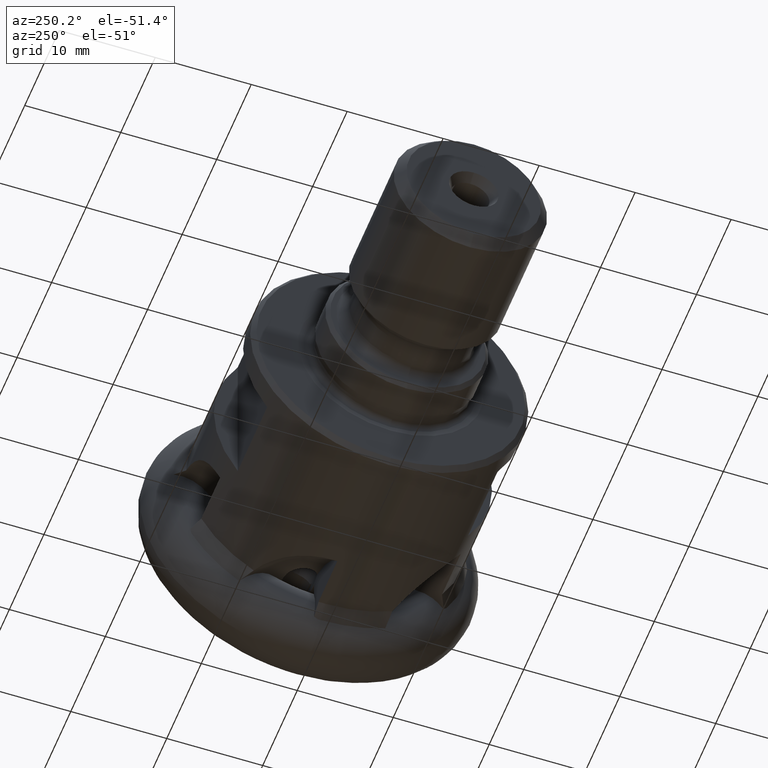
[diagram: clean part render]
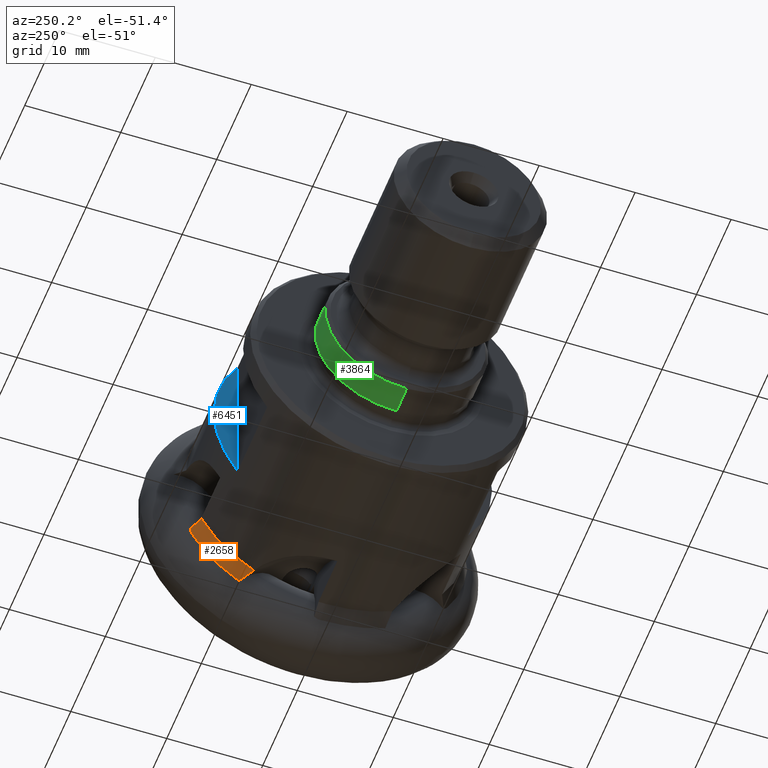
[diagram: same view with three faces highlighted in distinct colors, each labeled with its STEP entity id]
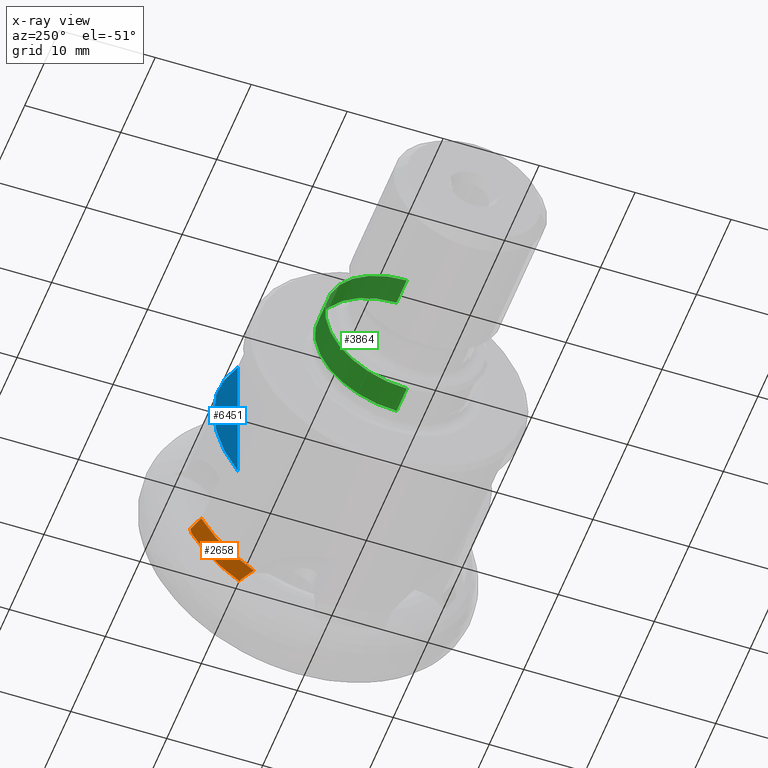
[diagram: x-ray of the same camera — body ghosted, the three highlighted faces saturated]
A machine part, auxiliary view with three faces highlighted in distinct colors.
The next image is the same camera in x-ray (body ghosted, the three faces saturated) — at least one of them is partly hidden behind the body in this view.
Their STEP definitions:

[orange] entity #2658 — the highlighted conical surface has half-angle 30 deg.
#14 = B_SPLINE_CURVE_WITH_KNOTS ( 'NONE', 3,
 ( #4883, #5493, #6180, #1115 ),
 .UNSPECIFIED., .F., .F.,
 ( 4, 4 ),
 ( 0.002868509546023665100, 0.004399345624133096600 ),
 .UNSPECIFIED. ) ;
#195 = VERTEX_POINT ( 'NONE', #252 ) ;
#239 = CIRCLE ( 'NONE', #5200, 15.33755113536582500 ) ;
#252 = CARTESIAN_POINT ( 'NONE',  ( -8.108779725843955800, 12.92155623944317200, -6.579010894572775200 ) ) ;
#939 = AXIS2_PLACEMENT_3D ( 'NONE', #6602, #7919, #5249 ) ;
#1115 = CARTESIAN_POINT ( 'NONE',  ( -8.108779725843955800, 12.92155623944317200, -6.579010894572775200 ) ) ;
#1221 = CIRCLE ( 'NONE', #939, 14.50000000000000000 ) ;
#1331 = ORIENTED_EDGE ( 'NONE', *, *, #3978, .T. ) ;
#1473 = DIRECTION ( 'NONE',  ( 0.0000000000000000000, 0.0000000000000000000, -1.000000000000000000 ) ) ;
#1725 = EDGE_CURVE ( 'NONE', #6929, #5547, #3102, .T. ) ;
#1767 = CARTESIAN_POINT ( 'NONE',  ( -8.108779725843957600, 7.460638509583144000, -12.43337737822370500 ) ) ;
#2394 = CARTESIAN_POINT ( 'NONE',  ( -6.658098605453361100, 8.476024130455002100, -12.78270275684708500 ) ) ;
#2658 = ADVANCED_FACE ( 'NONE', ( #5028 ), #2814, .T. ) ;
#2814 = CONICAL_SURFACE ( 'NONE', #5735, 16.69900000000000200, 0.5235987755983005900 ) ;
#2872 = EDGE_CURVE ( 'NONE', #3617, #6337, #4360, .T. ) ;
#3102 =( BOUNDED_CURVE ( )  B_SPLINE_CURVE ( 3, ( #6235, #5494, #6317, #6965 ),
 .UNSPECIFIED., .F., .F. ) 
 B_SPLINE_CURVE_WITH_KNOTS ( ( 4, 4 ),
 ( 4.513710531232641500, 4.544284210218442900 ),
 .UNSPECIFIED. ) 
 CURVE ( )  GEOMETRIC_REPRESENTATION_ITEM ( )  RATIONAL_B_SPLINE_CURVE ( ( 1.000000000000000000, 0.9999221056963671900, 0.9999221056963671900, 1.000000000000000000 ) ) 
 REPRESENTATION_ITEM ( '' )  );
#3333 = EDGE_CURVE ( 'NONE', #6337, #5547, #239, .T. ) ;
#3433 = CARTESIAN_POINT ( 'NONE',  ( -6.783404308883628900, 13.58664362671010700, -6.959139653608547200 ) ) ;
#3617 = VERTEX_POINT ( 'NONE', #5950 ) ;
#3720 = CARTESIAN_POINT ( 'NONE',  ( -6.658098605453361100, 8.476024130455002100, -12.78270275684708500 ) ) ;
#3978 = EDGE_CURVE ( 'NONE', #3617, #195, #1221, .T. ) ;
#4146 = CARTESIAN_POINT ( 'NONE',  ( -6.658098605448426400, 13.42715466312562000, -7.412961114343072000 ) ) ;
#4291 = CARTESIAN_POINT ( 'NONE',  ( -7.640830713211278700, 7.837675066097721900, -12.52221395056433700 ) ) ;
#4360 = B_SPLINE_CURVE_WITH_KNOTS ( 'NONE', 3,
 ( #1767, #4291, #4381, #3720 ),
 .UNSPECIFIED., .F., .F.,
 ( 4, 4 ),
 ( 6.071532165918824800E-018, 0.001799569999544170300 ),
 .UNSPECIFIED. ) ;
#4381 = CARTESIAN_POINT ( 'NONE',  ( -7.155964188872150800, 8.174408496544789000, -12.63780635063768000 ) ) ;
#4632 = CARTESIAN_POINT ( 'NONE',  ( -4.300000000000008700, 0.0000000000000000000, 0.0000000000000000000 ) ) ;
#4693 = CARTESIAN_POINT ( 'NONE',  ( -6.658098605453361100, 0.0000000000000000000, 0.0000000000000000000 ) ) ;
#4883 = CARTESIAN_POINT ( 'NONE',  ( -6.783404308883628900, 13.58664362671010700, -6.959139653608547200 ) ) ;
#5028 = FACE_OUTER_BOUND ( 'NONE', #5421, .T. ) ;
#5200 = AXIS2_PLACEMENT_3D ( 'NONE', #4693, #6545, #7175 ) ;
#5249 = DIRECTION ( 'NONE',  ( 0.0000000000000000000, 0.0000000000000000000, -1.000000000000000000 ) ) ;
#5421 = EDGE_LOOP ( 'NONE', ( #7051, #7548, #1331, #7374, #6032 ) ) ;
#5493 = CARTESIAN_POINT ( 'NONE',  ( -7.225202266112074100, 13.36495707148643700, -6.832435348662424500 ) ) ;
#5494 = CARTESIAN_POINT ( 'NONE',  ( -6.741755800504694900, 13.53577329329599400, -7.111201673880992200 ) ) ;
#5547 = VERTEX_POINT ( 'NONE', #4146 ) ;
#5735 = AXIS2_PLACEMENT_3D ( 'NONE', #4632, #5751, #1473 ) ;
#5751 = DIRECTION ( 'NONE',  ( 1.000000000000000000, -0.0000000000000000000, -0.0000000000000000000 ) ) ;
#5950 = CARTESIAN_POINT ( 'NONE',  ( -8.108779725843957600, 7.460638509583144000, -12.43337737822370500 ) ) ;
#6032 = ORIENTED_EDGE ( 'NONE', *, *, #1725, .T. ) ;
#6180 = CARTESIAN_POINT ( 'NONE',  ( -7.666994397232720400, 13.14326176407307800, -6.705726041427777100 ) ) ;
#6204 = EDGE_CURVE ( 'NONE', #6929, #195, #14, .T. ) ;
#6235 = CARTESIAN_POINT ( 'NONE',  ( -6.783404308883628900, 13.58664362671010700, -6.959139653608547200 ) ) ;
#6317 = CARTESIAN_POINT ( 'NONE',  ( -6.699983978905906100, 13.48260616401587900, -7.262487278411876800 ) ) ;
#6337 = VERTEX_POINT ( 'NONE', #2394 ) ;
#6545 = DIRECTION ( 'NONE',  ( 1.000000000000000000, -0.0000000000000000000, -0.0000000000000000000 ) ) ;
#6602 = CARTESIAN_POINT ( 'NONE',  ( -8.108779725843957600, 0.0000000000000000000, 0.0000000000000000000 ) ) ;
#6929 = VERTEX_POINT ( 'NONE', #3433 ) ;
#6965 = CARTESIAN_POINT ( 'NONE',  ( -6.658098605448426400, 13.42715466312562000, -7.412961114343072000 ) ) ;
#7051 = ORIENTED_EDGE ( 'NONE', *, *, #3333, .F. ) ;
#7175 = DIRECTION ( 'NONE',  ( 0.0000000000000000000, 0.0000000000000000000, -1.000000000000000000 ) ) ;
#7374 = ORIENTED_EDGE ( 'NONE', *, *, #6204, .F. ) ;
#7548 = ORIENTED_EDGE ( 'NONE', *, *, #2872, .F. ) ;
#7919 = DIRECTION ( 'NONE',  ( 1.000000000000000000, -0.0000000000000000000, -0.0000000000000000000 ) ) ;

[blue] entity #6451 — the highlighted planar face has unit normal (1, 0, 0).
#211 = AXIS2_PLACEMENT_3D ( 'NONE', #5838, #7775, #1273 ) ;
#658 = VERTEX_POINT ( 'NONE', #3207 ) ;
#797 = FACE_OUTER_BOUND ( 'NONE', #8141, .T. ) ;
#1071 = DIRECTION ( 'NONE',  ( -1.000000000000000000, -0.0000000000000000000, -0.0000000000000000000 ) ) ;
#1273 = DIRECTION ( 'NONE',  ( 0.0000000000000000000, 0.0000000000000000000, -1.000000000000000000 ) ) ;
#1696 = CARTESIAN_POINT ( 'NONE',  ( -16.10000000000000500, 0.0000000000000000000, 0.0000000000000000000 ) ) ;
#1706 = EDGE_CURVE ( 'NONE', #658, #7111, #5036, .T. ) ;
#3117 = ORIENTED_EDGE ( 'NONE', *, *, #8240, .T. ) ;
#3207 = CARTESIAN_POINT ( 'NONE',  ( -16.10000000000000500, 11.99999999999999600, 8.139410298049854800 ) ) ;
#3273 = PLANE ( 'NONE',  #211 ) ;
#5036 = CIRCLE ( 'NONE', #6454, 14.49999999999999800 ) ;
#5466 = DIRECTION ( 'NONE',  ( 0.0000000000000000000, -1.776356839400250300E-015, -1.000000000000000000 ) ) ;
#5838 = CARTESIAN_POINT ( 'NONE',  ( -16.10000000000000500, 22.30380108071597400, -15.00000000000000000 ) ) ;
#6272 = CARTESIAN_POINT ( 'NONE',  ( -16.10000000000000500, 11.99999999999999600, -15.00000000000000000 ) ) ;
#6451 = ADVANCED_FACE ( 'NONE', ( #797 ), #3273, .F. ) ;
#6454 = AXIS2_PLACEMENT_3D ( 'NONE', #1696, #1071, #5466 ) ;
#6811 = CARTESIAN_POINT ( 'NONE',  ( -16.10000000000000500, 11.99999999999999600, -8.139410298049854800 ) ) ;
#6972 = VECTOR ( 'NONE', #7571, 1000.000000000000000 ) ;
#7111 = VERTEX_POINT ( 'NONE', #6811 ) ;
#7162 = LINE ( 'NONE', #6272, #6972 ) ;
#7321 = ORIENTED_EDGE ( 'NONE', *, *, #1706, .T. ) ;
#7571 = DIRECTION ( 'NONE',  ( -0.0000000000000000000, -0.0000000000000000000, 1.000000000000000000 ) ) ;
#7775 = DIRECTION ( 'NONE',  ( 1.000000000000000000, 0.0000000000000000000, 0.0000000000000000000 ) ) ;
#8141 = EDGE_LOOP ( 'NONE', ( #7321, #3117 ) ) ;
#8240 = EDGE_CURVE ( 'NONE', #7111, #658, #7162, .T. ) ;

[green] entity #3864 — the highlighted cylindrical surface (partial cylindrical patch) has radius 8.5 mm, axis along (1, -0, -0).
#22 = CARTESIAN_POINT ( 'NONE',  ( -28.72679491924310800, 1.040949779275249900E-015, -8.499999999999996400 ) ) ;
#351 = CARTESIAN_POINT ( 'NONE',  ( -28.72679491924310800, 0.0000000000000000000, 0.0000000000000000000 ) ) ;
#554 = LINE ( 'NONE', #7314, #3299 ) ;
#976 = DIRECTION ( 'NONE',  ( -1.000000000000000000, 0.0000000000000000000, 0.0000000000000000000 ) ) ;
#1155 = ORIENTED_EDGE ( 'NONE', *, *, #6417, .T. ) ;
#1179 = DIRECTION ( 'NONE',  ( 1.000000000000000000, -0.0000000000000000000, -0.0000000000000000000 ) ) ;
#1307 = AXIS2_PLACEMENT_3D ( 'NONE', #351, #976, #6719 ) ;
#1369 = VERTEX_POINT ( 'NONE', #7369 ) ;
#1430 = VERTEX_POINT ( 'NONE', #2437 ) ;
#2027 = EDGE_LOOP ( 'NONE', ( #8175, #1155, #4437, #4565 ) ) ;
#2437 = CARTESIAN_POINT ( 'NONE',  ( -31.70000000000000600, 0.0000000000000000000, -8.499999999999992900 ) ) ;
#2710 = EDGE_CURVE ( 'NONE', #1430, #3493, #554, .T. ) ;
#3167 = DIRECTION ( 'NONE',  ( 1.000000000000000000, -0.0000000000000000000, -0.0000000000000000000 ) ) ;
#3299 = VECTOR ( 'NONE', #4688, 1000.000000000000000 ) ;
#3493 = VERTEX_POINT ( 'NONE', #22 ) ;
#3695 = DIRECTION ( 'NONE',  ( 0.0000000000000000000, 0.0000000000000000000, -1.000000000000000000 ) ) ;
#3800 = FACE_OUTER_BOUND ( 'NONE', #2027, .T. ) ;
#3864 = ADVANCED_FACE ( 'NONE', ( #3800 ), #4112, .T. ) ;
#4005 = EDGE_CURVE ( 'NONE', #1369, #3493, #6512, .T. ) ;
#4112 = CYLINDRICAL_SURFACE ( 'NONE', #5951, 8.499999999999996400 ) ;
#4170 = VERTEX_POINT ( 'NONE', #7500 ) ;
#4306 = DIRECTION ( 'NONE',  ( 0.0000000000000000000, 0.0000000000000000000, -1.000000000000000000 ) ) ;
#4382 = CARTESIAN_POINT ( 'NONE',  ( -31.70000000000000600, 0.0000000000000000000, 0.0000000000000000000 ) ) ;
#4437 = ORIENTED_EDGE ( 'NONE', *, *, #4005, .T. ) ;
#4565 = ORIENTED_EDGE ( 'NONE', *, *, #2710, .F. ) ;
#4688 = DIRECTION ( 'NONE',  ( 1.000000000000000000, -0.0000000000000000000, -0.0000000000000000000 ) ) ;
#5074 = LINE ( 'NONE', #6413, #8089 ) ;
#5271 = CIRCLE ( 'NONE', #5654, 8.499999999999996400 ) ;
#5647 = CARTESIAN_POINT ( 'NONE',  ( 0.0000000000000000000, 0.0000000000000000000, 0.0000000000000000000 ) ) ;
#5654 = AXIS2_PLACEMENT_3D ( 'NONE', #4382, #1179, #3695 ) ;
#5951 = AXIS2_PLACEMENT_3D ( 'NONE', #5647, #6191, #4306 ) ;
#6191 = DIRECTION ( 'NONE',  ( 1.000000000000000000, -0.0000000000000000000, -0.0000000000000000000 ) ) ;
#6315 = EDGE_CURVE ( 'NONE', #1430, #4170, #5271, .T. ) ;
#6413 = CARTESIAN_POINT ( 'NONE',  ( 0.0000000000000000000, 1.040949779275249900E-015, 8.499999999999996400 ) ) ;
#6417 = EDGE_CURVE ( 'NONE', #4170, #1369, #5074, .T. ) ;
#6512 = CIRCLE ( 'NONE', #1307, 8.499999999999996400 ) ;
#6719 = DIRECTION ( 'NONE',  ( 0.0000000000000000000, 0.0000000000000000000, 1.000000000000000000 ) ) ;
#7314 = CARTESIAN_POINT ( 'NONE',  ( 0.0000000000000000000, 0.0000000000000000000, -8.499999999999996400 ) ) ;
#7369 = CARTESIAN_POINT ( 'NONE',  ( -28.72679491924310800, 0.0000000000000000000, 8.499999999999996400 ) ) ;
#7500 = CARTESIAN_POINT ( 'NONE',  ( -31.70000000000000600, 1.040949779275249500E-015, 8.499999999999992900 ) ) ;
#8089 = VECTOR ( 'NONE', #3167, 1000.000000000000000 ) ;
#8175 = ORIENTED_EDGE ( 'NONE', *, *, #6315, .T. ) ;